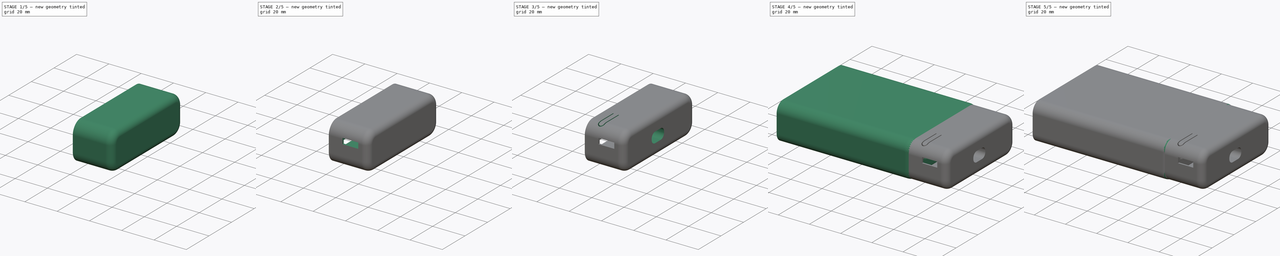
[diagram: build sequence overview — one tinted view per stage of 5, left to right]
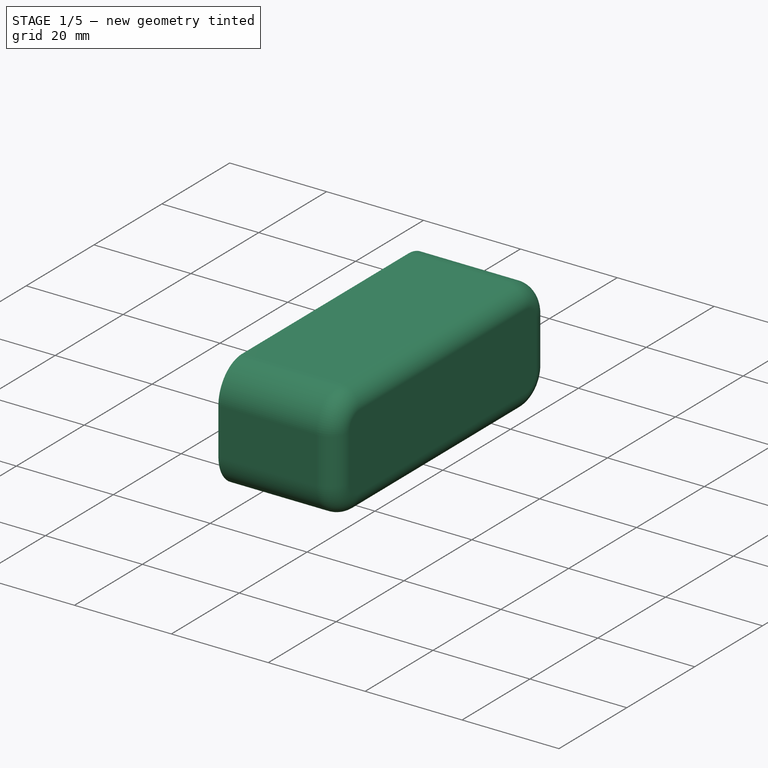
[diagram: stage 1 of 5 — iso view after this stage's code; geometry added in this stage tinted green]
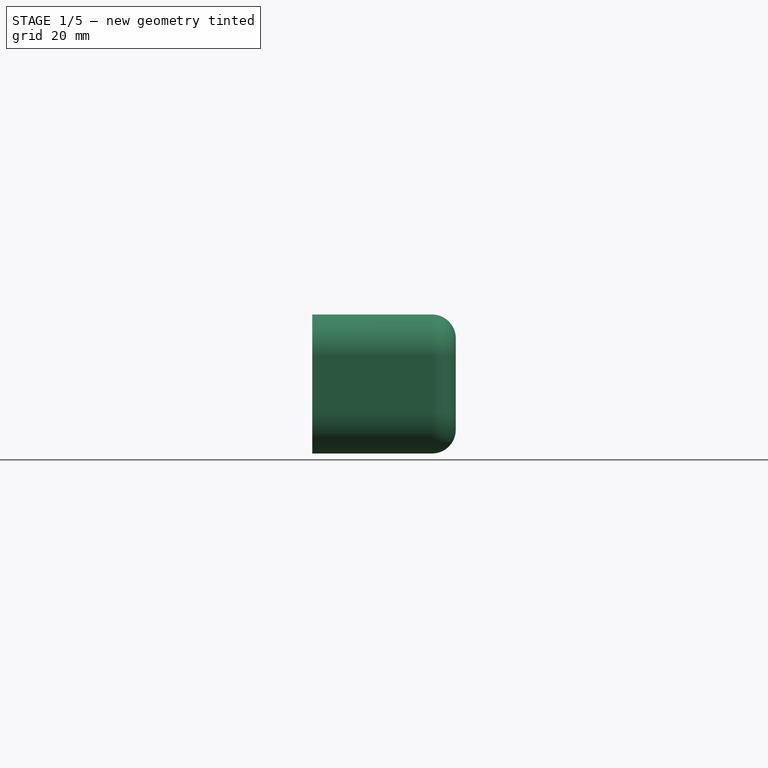
[diagram: stage 1 of 5 — front view after this stage's code; geometry added in this stage tinted green]
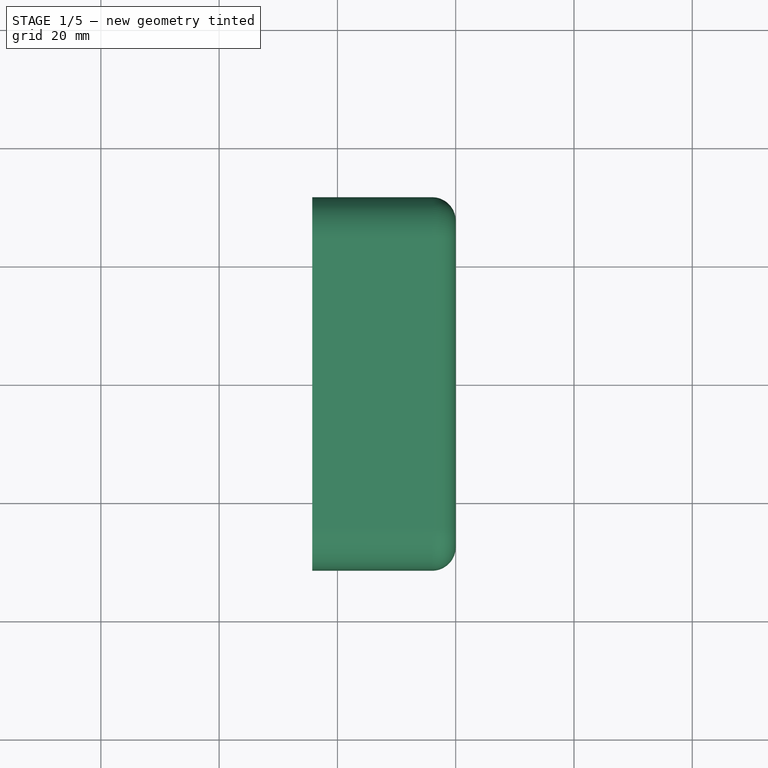
[diagram: stage 1 of 5 — top view after this stage's code; geometry added in this stage tinted green]
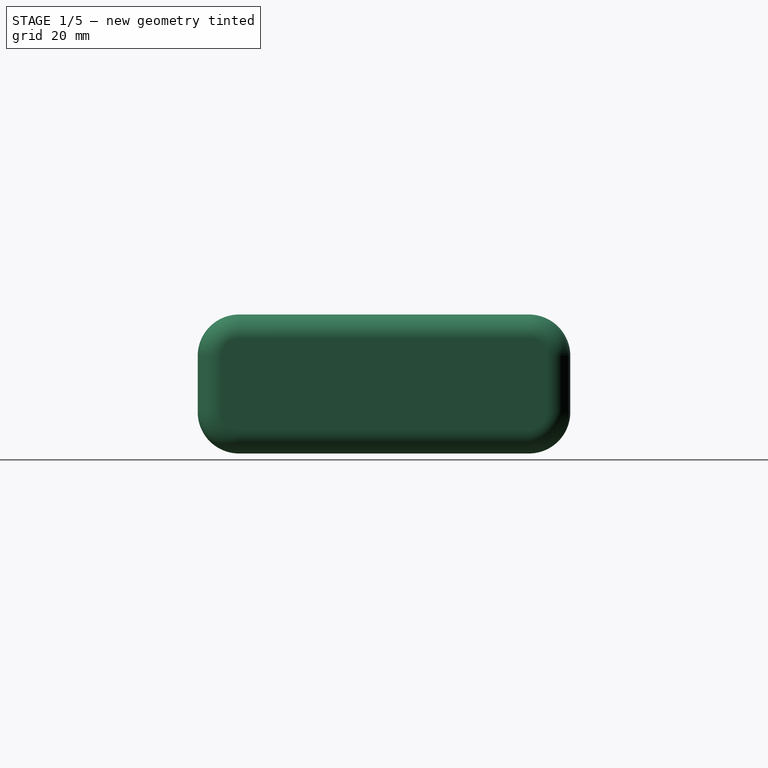
[diagram: stage 1 of 5 — right view after this stage's code; geometry added in this stage tinted green]
FCSTD DOCUMENT  (FreeCAD 1.1R40267 (Git))
Label: xiao_intenso_xs10000
License: All rights reserved
LicenseURL: https://en.wikipedia.org/wiki/All_rights_reserved
objects: Part::Feature×37, Sketcher::SketchObject×12, App::Point×11, App::Part×8, PartDesign::Pocket×6, PartDesign::Pad×4, PartDesign::Fillet×4, PartDesign::Body×3, Part::Cut×1
note: 107 computed .brp shape members not serialized (recipe doc carries the construction recipe); baked Part::Feature solids carry a one-line shape summary decoded from their .brp

FEATURE [PartDesign::Body] Body  label="powerbank_intenso_xs10000_10Ah"
  AllowCompound = false
  Group = -> [Sketch,Sketch001,Pad,Fillet]
  Origin = -> Origin016
  Tip = -> Fillet
FEATURE [Sketcher::SketchObject] Sketch002
  ArcFitTolerance = 1e-06
  AttachmentSupport = -> [XZ_Plane009]
  ExternalTypes = [0]
  FullyConstrained = false
  MakeInternals = false
  MapMode = 5
  Placement = pos=(0,0,0) rot=(1,0,0;1.5708rad)
  sketch-geometry (6):
    g0: LineSegment StartX=-4.25 StartY=11.75 StartZ=0 EndX=0.5 EndY=11.75 EndZ=0
    g1: LineSegment StartX=0.5 StartY=11.75 StartZ=0 EndX=20 EndY=11.75 EndZ=0
    g2: LineSegment StartX=-4.25 StartY=-11.75 StartZ=0 EndX=0.5 EndY=-11.75 EndZ=0
    g3: LineSegment StartX=0.5 StartY=-11.75 StartZ=0 EndX=20 EndY=-11.75 EndZ=0
    g4: LineSegment StartX=20 StartY=11.75 StartZ=0 EndX=20 EndY=-11.75 EndZ=0
    g5: LineSegment StartX=-4.25 StartY=-11.75 StartZ=0 EndX=-4.25 EndY=11.75 EndZ=0
  constraints (15):
    c: Distance(g0) = 4.75
    c: Horizontal(g0)
    c: Distance(g1) = 19.5
    c: Horizontal(g1)
    c: Coincident(g1,g0)
    c: Horizontal(g2)
    c: Horizontal(g3)
    c: Coincident(g3,g2)
    c: Coincident(g4,g1)
    c: Coincident(g4,g3)
    c: Vertical(g4)
    c: Coincident(g5,g2)
    c: Coincident(g5,g0)
    c: DistanceX(g0) = 0.5
    c: Vertical(g5)
FEATURE [App::Point] Origin019
  Role = Origin
FEATURE [PartDesign::Pad] Pad001
  Direction = (0,-1,2e-16)
  Length = 63
  Length2 = 10
  Midplane = true
  Placement = pos=(0,0,0) rot=(1,0,0;1.5708rad)
  Profile = -> Sketch002
  ReferenceAxis = -> Sketch002 [N_Axis]
  Refine = true
  Suppressed = false
  Type = 0
FEATURE [PartDesign::Fillet] Fillet001
  Base = -> Pad001 [Edge11,Edge12,Edge7,Edge5]
  BaseFeature = -> Pad001
  Placement = pos=(0,0,0) rot=(1,0,0;1.5708rad)
  Radius = 7
  Refine = true
  SupportTransform = false
  Suppressed = false
  UseAllEdges = false
FEATURE [PartDesign::Body] Body002  label="cut_powerbank_intenso_xs10000"
  AllowCompound = false
  Group = -> [Sketch003,Sketch004,Pad002,Fillet002]
  Origin = -> Origin020
  Placement = pos=(0.5,0,0) rot=(0,0,1;0rad)
  Tip = -> Fillet002
FEATURE [Sketcher::SketchObject] Sketch005
  ArcFitTolerance = 1e-06
  AttachmentOffset = pos=(0,0,-5) rot=(0,0,1;0rad)
  AttachmentSupport = -> [YZ_Plane009]
  ExternalTypes = [0]
  FullyConstrained = false
  MakeInternals = false
  MapMode = 5
  Placement = pos=(-5,0,0) rot=(0.57735,0.57735,0.57735;2.0944rad)
  sketch-geometry (16):
    g0: LineSegment StartX=-30.5 StartY=4 StartZ=0 EndX=-30.5 EndY=-6 EndZ=0
    g1: LineSegment StartX=-30.5 StartY=-6 StartZ=0 EndX=-11.004 EndY=-6 EndZ=0
    g2: LineSegment StartX=27.5 StartY=-6 StartZ=0 EndX=27.5 EndY=4 EndZ=0
    g3: LineSegment StartX=27.5 StartY=4 StartZ=0 EndX=6.25 EndY=4 EndZ=0
    g4: GeomPoint [constr] X=-7 Y=4 Z=0
    g5: GeomPoint [constr] X=-7 Y=-5 Z=0
    g6: GeomPoint [constr] X=6 Y=4 Z=0
    g7: GeomPoint [constr] X=6 Y=-5 Z=0
    g8: LineSegment StartX=6.25 StartY=4 StartZ=0 EndX=6.25 EndY=-6 EndZ=0
    g9: LineSegment StartX=-7.75 StartY=4 StartZ=0 EndX=-7.75 EndY=-6 EndZ=0
    g10: LineSegment StartX=-7.75 StartY=4 StartZ=0 EndX=-30.5 EndY=4 EndZ=0
    g11: LineSegment StartX=8.50015 StartY=-6 StartZ=0 EndX=27.5 EndY=-6 EndZ=0
    g12: LineSegment StartX=-7.75 StartY=-6 StartZ=0 EndX=6.25 EndY=-6 EndZ=0
    g13: LineSegment StartX=-8.25 StartY=-9.25 StartZ=0 EndX=7 EndY=-9.25 EndZ=0
    g14: LineSegment StartX=7 StartY=-9.25 StartZ=0 EndX=8.50015 EndY=-6 EndZ=0
    g15: LineSegment StartX=-8.25 StartY=-9.25 StartZ=0 EndX=-11.004 EndY=-6 EndZ=0
  constraints (23):
    c: Coincident(g0,g1)
    c: Coincident(g11,g2)
    c: Coincident(g2,g3)
    c: Coincident(g10,g0)
    c: Vertical(g0)
    c: Vertical(g2)
    c: Distance(g0,g2) = 58
    c: Distance(g4,g6) = 13
    c: Distance(g5,g4) = 9
    c: Horizontal(g3)
    c: Horizontal(g10)
    c: Vertical(g9)
    c: Coincident(g10,g9)
    c: Vertical(g8)
    c: Coincident(g3,g8)
    c: Horizontal(g12)
    c: Horizontal(g13)
    c: Coincident(g14,g13)
    c: Horizontal(g11)
    c: Coincident(g14,g11)
    c: Coincident(g15,g13)
    c: Horizontal(g1)
    c: Coincident(g15,g1)
FEATURE [Sketcher::SketchObject] Sketch006
  ArcFitTolerance = 1e-06
  AttachmentOffset = pos=(0,0,2) rot=(0,0,1;0rad)
  AttachmentSupport = -> [XY_Plane009]
  ExternalTypes = [0]
  FullyConstrained = false
  MakeInternals = false
  MapMode = 5
  Placement = pos=(0,0,2) rot=(0,0,1;0rad)
  sketch-geometry (4):
    g0: LineSegment StartX=14 StartY=-22.8728 StartZ=0 EndX=4.25 EndY=-22.8728 EndZ=0
    g1: LineSegment StartX=4.25 StartY=-22.8728 StartZ=0 EndX=4.25 EndY=-32 EndZ=0
    g2: LineSegment StartX=4.25 StartY=-32 StartZ=0 EndX=14 EndY=-32 EndZ=0
    g3: LineSegment StartX=14 StartY=-32 StartZ=0 EndX=14 EndY=-22.8728 EndZ=0
  constraints (8):
    c: Coincident(g0,g1)
    c: Coincident(g1,g2)
    c: Coincident(g2,g3)
    c: Coincident(g3,g0)
    c: Horizontal(g0)
    c: Horizontal(g2)
    c: Vertical(g1)
    c: Vertical(g3)
FEATURE [Sketcher::SketchObject] Sketch007
  ArcFitTolerance = 1e-06
  AttachmentSupport = -> [YZ_Plane009]
  ExternalTypes = [0]
  FullyConstrained = false
  MakeInternals = false
  MapMode = 5
  Placement = pos=(0,0,0) rot=(0.57735,0.57735,0.57735;2.0944rad)
  sketch-geometry (4):
    g0: LineSegment StartX=-7.5 StartY=2 StartZ=0 EndX=-28.5 EndY=2 EndZ=0
    g1: LineSegment StartX=-28.5 StartY=2 StartZ=0 EndX=-28.5 EndY=-0.5 EndZ=0
    g2: LineSegment StartX=-28.5 StartY=-0.5 StartZ=0 EndX=-7.5 EndY=-0.5 EndZ=0
    g3: LineSegment StartX=-7.5 StartY=-0.5 StartZ=0 EndX=-7.5 EndY=2 EndZ=0
  constraints (8):
    c: Coincident(g0,g1)
    c: Coincident(g1,g2)
    c: Coincident(g2,g3)
    c: Coincident(g3,g0)
    c: Horizontal(g0)
    c: Horizontal(g2)
    c: Vertical(g1)
    c: Vertical(g3)
FEATURE [Sketcher::SketchObject] Sketch008
  ArcFitTolerance = 1e-06
  AttachmentSupport = -> [YZ_Plane009]
  ExternalTypes = [0]
  FullyConstrained = false
  MakeInternals = false
  MapMode = 5
  Placement = pos=(0,0,0) rot=(0.57735,0.57735,0.57735;2.0944rad)
  sketch-geometry (12):
    g0: LineSegment StartX=-7 StartY=-0.250037 StartZ=0 EndX=-7 EndY=-0.750037 EndZ=0
    g1: LineSegment StartX=-4 StartY=-3.75004 StartZ=0 EndX=1 EndY=-3.75004 EndZ=0
    g2: LineSegment StartX=4 StartY=-0.750037 StartZ=0 EndX=4 EndY=-0.250037 EndZ=0
    g3: LineSegment StartX=1 StartY=2.74996 StartZ=0 EndX=-4 EndY=2.74996 EndZ=0
    g4: ArcOfCircle CenterX=-4 CenterY=-0.250037 CenterZ=0 NormalX=0 NormalY=0 NormalZ=1 AngleXU=0 Radius=3 StartAngle=1.5708 EndAngle=3.14159
    g5: GeomPoint [constr] X=-7 Y=2.74996 Z=0
    g6: ArcOfCircle CenterX=-4 CenterY=-0.750037 CenterZ=0 NormalX=0 NormalY=0 NormalZ=1 AngleXU=0 Radius=3 StartAngle=3.14159 EndAngle=4.71239
    g7: GeomPoint [constr] X=-7 Y=-3.75004 Z=0
    g8: ArcOfCircle CenterX=1 CenterY=-0.250037 CenterZ=0 NormalX=0 NormalY=0 NormalZ=1 AngleXU=0 Radius=3 StartAngle=-9e-16 EndAngle=1.5708
    g9: GeomPoint [constr] X=4 Y=2.74996 Z=0
    g10: ArcOfCircle CenterX=1 CenterY=-0.750037 CenterZ=0 NormalX=0 NormalY=0 NormalZ=1 AngleXU=0 Radius=3 StartAngle=4.71239 EndAngle=6.28319
    g11: GeomPoint [constr] X=4 Y=-3.75004 Z=0
  constraints (27):
    c: Vertical(g0)
    c: Vertical(g2)
    c: Horizontal(g1)
    c: Horizontal(g3)
    c: Distance(g5,g9) = 11
    c: Distance(g7,g5) = 6.5
    c: PointOnObject(g5,g3)
    c: PointOnObject(g5,g0)
    c: Tangent(g3,g4) = -1.5708
    c: Tangent(g0,g4) = -1.5708
    c: PointOnObject(g7,g0)
    c: PointOnObject(g7,g1)
    c: Tangent(g0,g6) = -1.5708
    c: Tangent(g1,g6) = -1.5708
    c: PointOnObject(g9,g3)
    c: PointOnObject(g9,g2)
    c: Tangent(g3,g8) = -1.5708
    c: Tangent(g2,g8) = -1.5708
    c: PointOnObject(g11,g2)
    c: PointOnObject(g11,g1)
    c: Tangent(g2,g10) = -1.5708
    c: Tangent(g1,g10) = -1.5708
    c: Equal(g10,g8)
    c: Equal(g8,g4)
    c: Equal(g4,g6)
    c: Radius(g8) = 3
    c: DistanceX(g8) = 1
FEATURE [Sketcher::SketchObject] Sketch009
  ArcFitTolerance = 1e-06
  AttachmentSupport = -> [XY_Plane009]
  ExternalTypes = [0]
  FullyConstrained = false
  MakeInternals = false
  MapMode = 5
  sketch-geometry (4):
    g0: LineSegment StartX=6 StartY=-25 StartZ=0 EndX=6 EndY=-14 EndZ=0
    g1: LineSegment StartX=6 StartY=-14 StartZ=0 EndX=0 EndY=-14 EndZ=0
    g2: LineSegment StartX=0 StartY=-14 StartZ=0 EndX=0 EndY=-25 EndZ=0
    g3: LineSegment StartX=0 StartY=-25 StartZ=0 EndX=6 EndY=-25 EndZ=0
  constraints (8):
    c: Coincident(g0,g1)
    c: Coincident(g1,g2)
    c: Coincident(g2,g3)
    c: Coincident(g3,g0)
    c: Vertical(g0)
    c: Vertical(g2)
    c: Horizontal(g1)
    c: Horizontal(g3)
FEATURE [Sketcher::SketchObject] Sketch010
  ArcFitTolerance = 1e-06
  AttachmentSupport = -> [XY_Plane009]
  ExternalTypes = [0]
  FullyConstrained = false
  MakeInternals = false
  MapMode = 5
  sketch-geometry (8):
    g0: LineSegment StartX=1.5 StartY=-14 StartZ=0 EndX=1.5 EndY=-26.7456 EndZ=0
    g1: LineSegment StartX=4.25 StartY=-26.7453 StartZ=0 EndX=4.25 EndY=-14 EndZ=0
    g2: LineSegment StartX=4.75 StartY=-26.7456 StartZ=0 EndX=4.75 EndY=-14 EndZ=0
    g3: LineSegment StartX=4.75 StartY=-14 StartZ=0 EndX=4.25 EndY=-14 EndZ=0
    g4: LineSegment StartX=1 StartY=-14 StartZ=0 EndX=1 EndY=-26.7456 EndZ=0
    g5: LineSegment StartX=1.5 StartY=-14 StartZ=0 EndX=1 EndY=-14 EndZ=0
    g6: ArcOfCircle CenterX=2.875 CenterY=-26.7502 CenterZ=0 NormalX=0 NormalY=0 NormalZ=1 AngleXU=0 Radius=1.37501 StartAngle=3.13824 EndAngle=6.28676
    g7: ArcOfCircle CenterX=2.875 CenterY=-26.7456 CenterZ=0 NormalX=0 NormalY=0 NormalZ=1 AngleXU=0 Radius=1.875 StartAngle=3.14159 EndAngle=6.28319
  constraints (16):
    c: Vertical(g0)
    c: Vertical(g1)
    c: Coincident(g2,g3)
    c: Coincident(g5,g4)
    c: Vertical(g2)
    c: Vertical(g4)
    c: Horizontal(g3)
    c: Horizontal(g5)
    c: Coincident(g3,g1)
    c: Coincident(g5,g0)
    c: Coincident(g6,g0)
    c: Coincident(g6,g1)
    c: Coincident(g7,g4)
    c: Coincident(g7,g2)
    c: DistanceX(g3,g3) = 0.5
    c: DistanceX(g5,g5) = 0.5
FEATURE [Sketcher::SketchObject] Sketch011
  ArcFitTolerance = 1e-06
  AttachmentOffset = pos=(0,0,4) rot=(0,0,1;0rad)
  AttachmentSupport = -> [XY_Plane009]
  ExternalTypes = [0]
  FullyConstrained = false
  MakeInternals = false
  MapMode = 5
  Placement = pos=(0,0,4) rot=(0,0,1;0rad)
  sketch-geometry (1):
    g0: Circle CenterX=2.875 CenterY=-26.75 CenterZ=0 NormalX=0 NormalY=0 NormalZ=1 AngleXU=0 Radius=1.37
  constraints (1):
    c: Radius(g0) = 1.37
FEATURE [PartDesign::Fillet] Fillet003
  Base = -> Fillet001 [Face10]
  BaseFeature = -> Fillet001
  Placement = pos=(0,0,0) rot=(1,0,0;1.5708rad)
  Radius = 4
  Refine = true
  SupportTransform = false
  Suppressed = false
  UseAllEdges = false
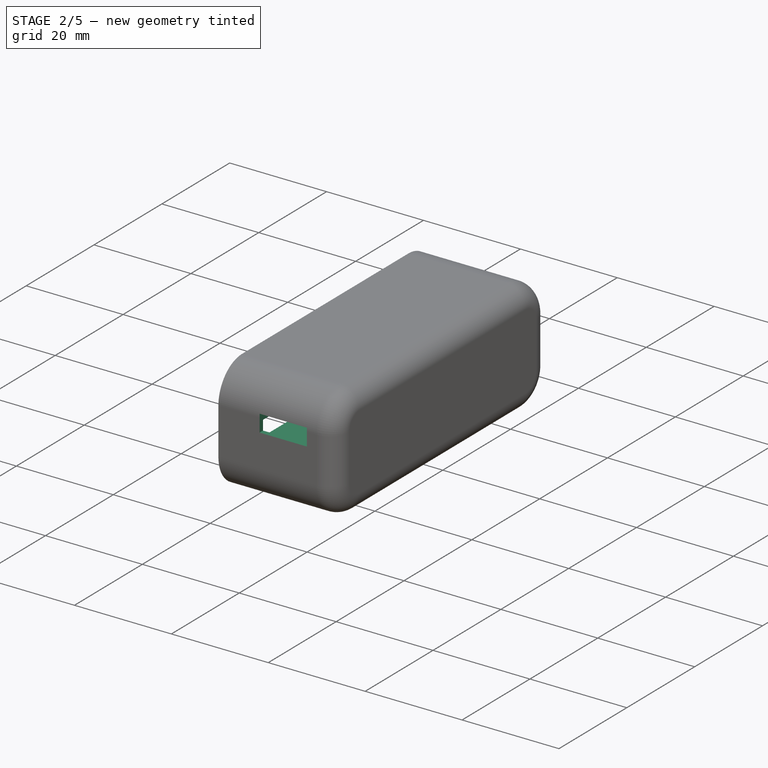
[diagram: stage 2 of 5 — iso view after this stage's code; geometry added in this stage tinted green]
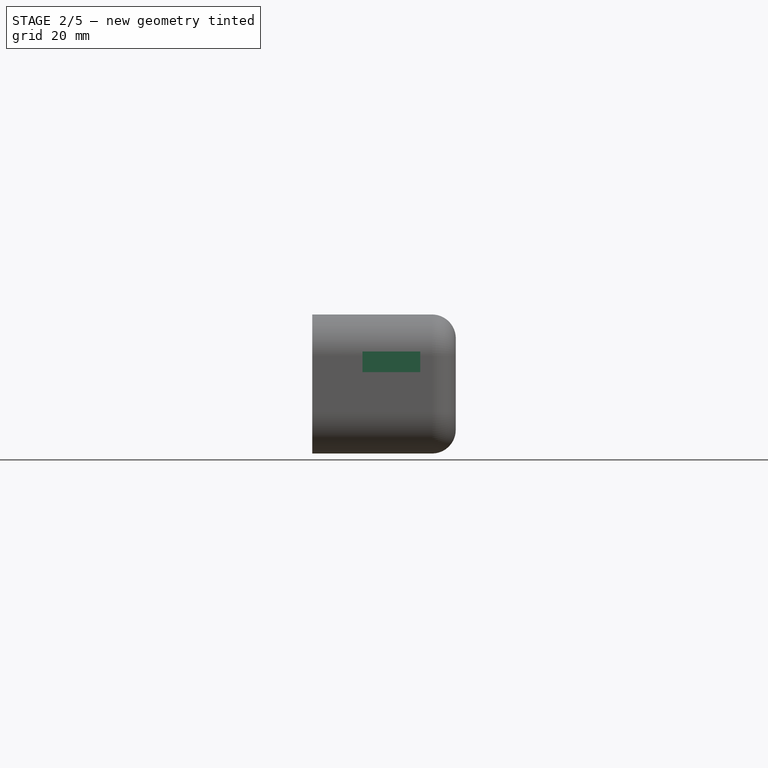
[diagram: stage 2 of 5 — front view after this stage's code; geometry added in this stage tinted green]
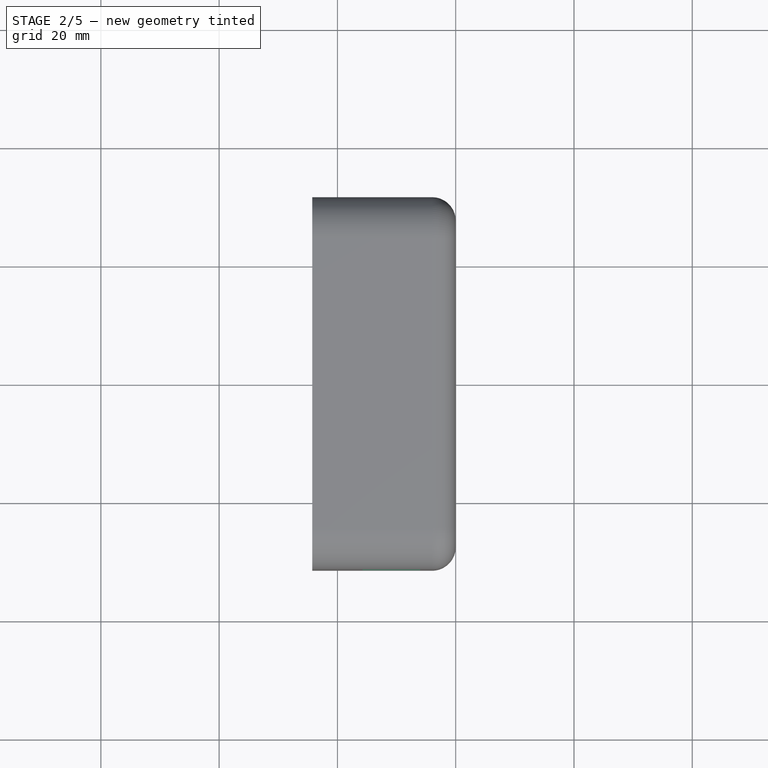
[diagram: stage 2 of 5 — top view after this stage's code; geometry added in this stage tinted green]
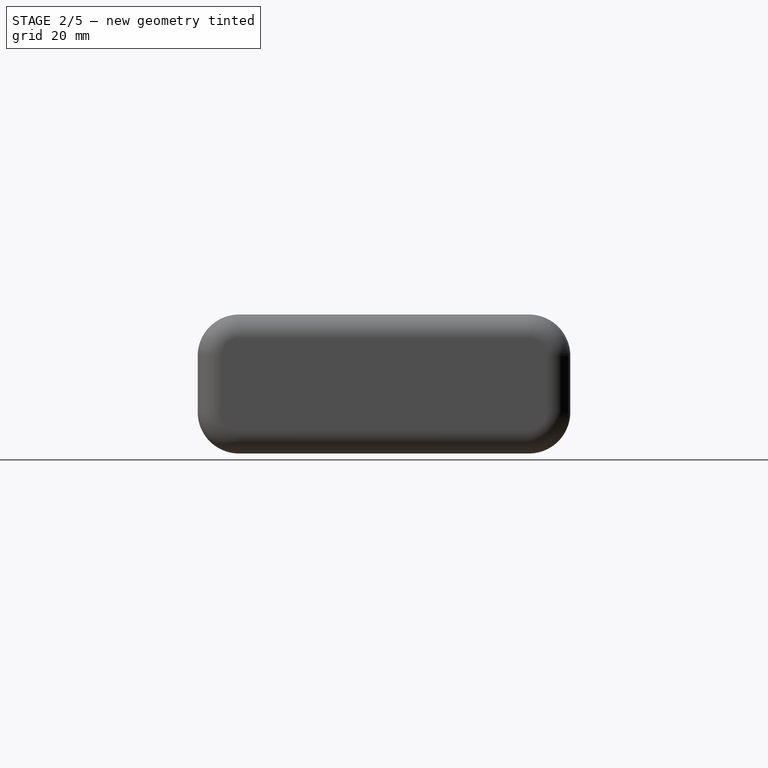
[diagram: stage 2 of 5 — right view after this stage's code; geometry added in this stage tinted green]
FEATURE [PartDesign::Pocket] Pocket
  BaseFeature = -> Fillet003
  Direction = (-1,0,0)
  Length = 22
  Length2 = 5
  Placement = pos=(0,0,0) rot=(1,0,0;1.5708rad)
  Profile = -> Sketch005
  ReferenceAxis = -> Sketch005 [N_Axis]
  Refine = true
  Reversed = true
  Suppressed = false
  Type = 0
FEATURE [PartDesign::Pocket] Pocket001
  BaseFeature = -> Pocket
  Direction = (0,0,-1)
  Length = 3.5
  Length2 = 5
  Placement = pos=(0,0,0) rot=(1,0,0;1.5708rad)
  Profile = -> Sketch006
  ReferenceAxis = -> Sketch006 [N_Axis]
  Refine = true
  Reversed = true
  Suppressed = false
  Type = 0
FEATURE [PartDesign::Pocket] Pocket002
  BaseFeature = -> Pocket001
  Direction = (-1,0,0)
  Length = 18
  Length2 = 5
  Placement = pos=(0,0,0) rot=(1,0,0;1.5708rad)
  Profile = -> Sketch007
  ReferenceAxis = -> Sketch007 [N_Axis]
  Refine = true
  Reversed = true
  Suppressed = false
  Type = 0
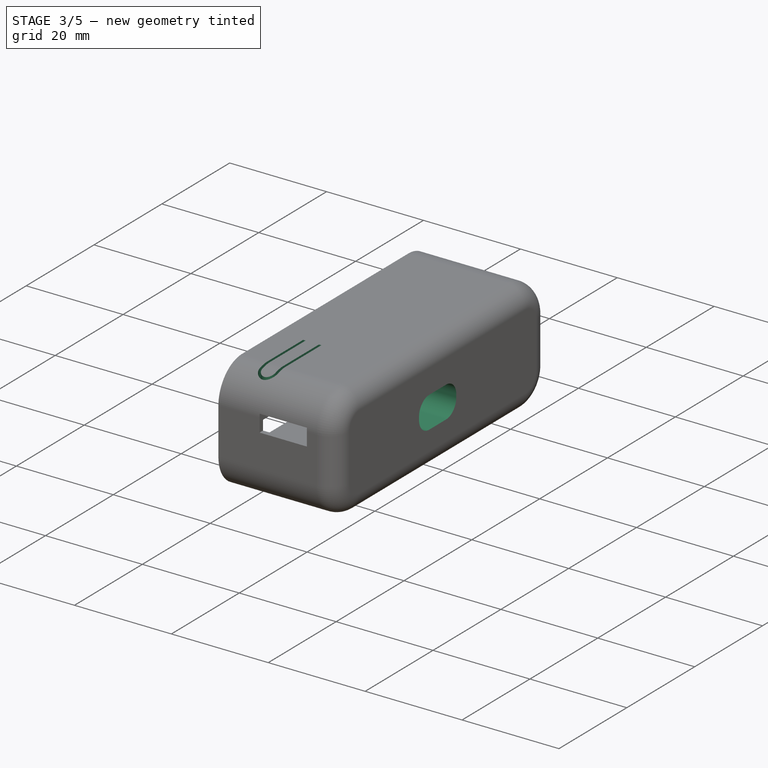
[diagram: stage 3 of 5 — iso view after this stage's code; geometry added in this stage tinted green]
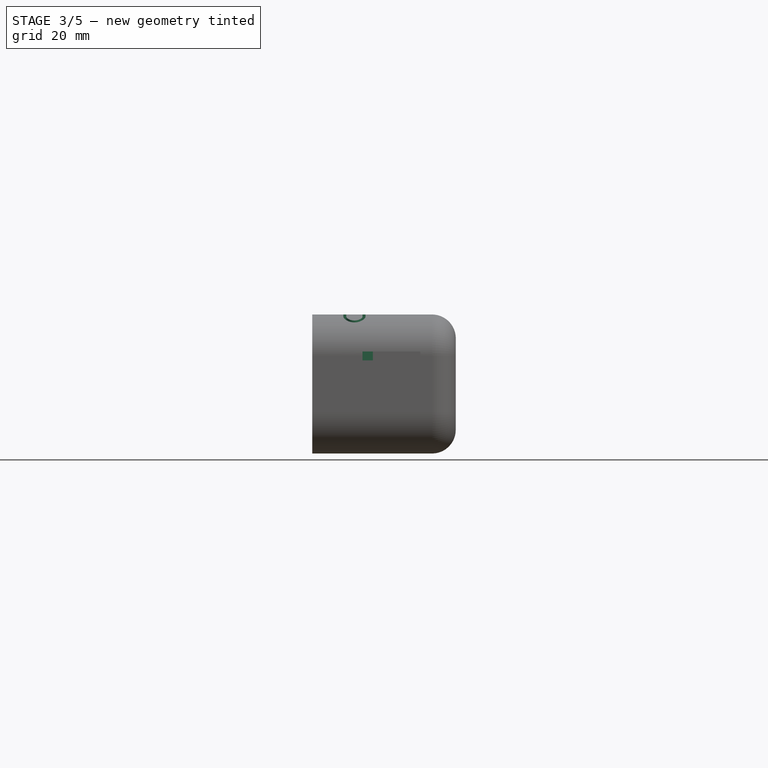
[diagram: stage 3 of 5 — front view after this stage's code; geometry added in this stage tinted green]
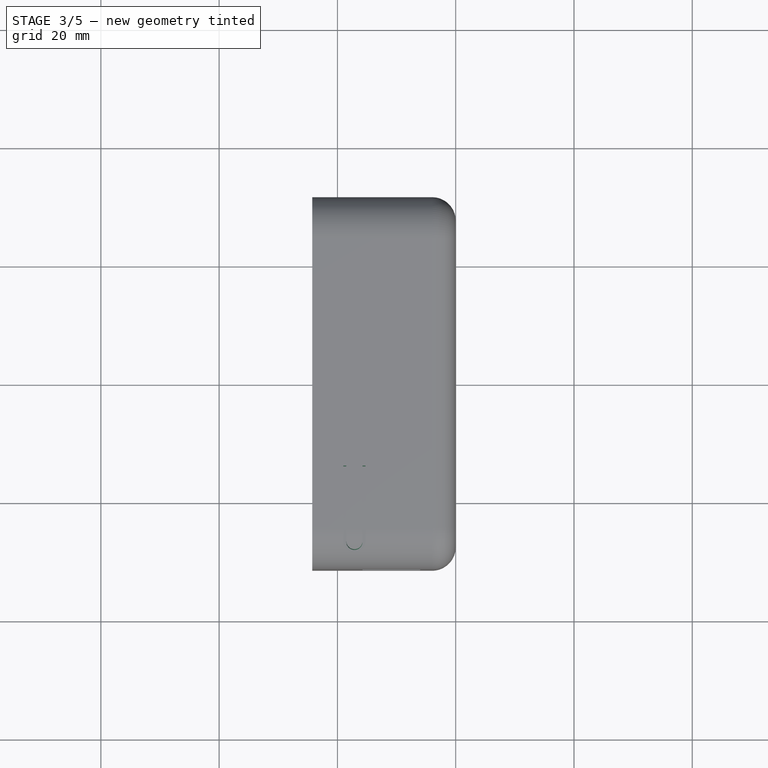
[diagram: stage 3 of 5 — top view after this stage's code; geometry added in this stage tinted green]
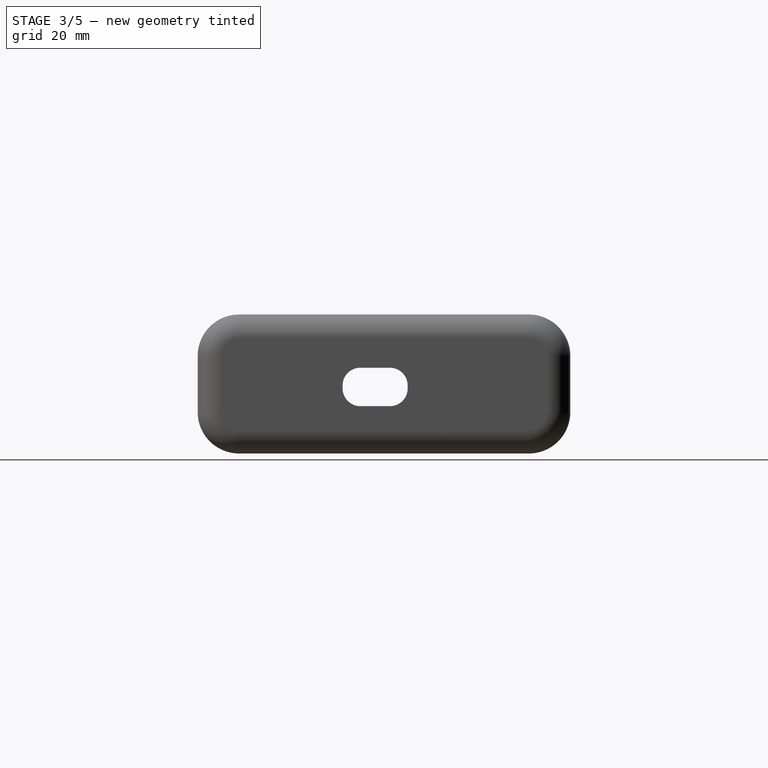
[diagram: stage 3 of 5 — right view after this stage's code; geometry added in this stage tinted green]
FEATURE [PartDesign::Pocket] Pocket003
  BaseFeature = -> Pocket002
  Direction = (-1,0,0)
  Length = 50
  Length2 = 5
  Midplane = true
  Placement = pos=(0,0,0) rot=(1,0,0;1.5708rad)
  Profile = -> Sketch008
  ReferenceAxis = -> Sketch008 [N_Axis]
  Refine = true
  Suppressed = false
  Type = 0
FEATURE [PartDesign::Pocket] Pocket004
  BaseFeature = -> Pocket003
  Direction = (0,0,-1)
  Length = 10
  Length2 = 5
  Placement = pos=(0,0,0) rot=(1,0,0;1.5708rad)
  Profile = -> Sketch009
  ReferenceAxis = -> Sketch009 [N_Axis]
  Refine = true
  Reversed = true
  Suppressed = false
  Type = 0
FEATURE [PartDesign::Pocket] Pocket005
  BaseFeature = -> Pocket004
  Direction = (0,0,-1)
  Length = 50
  Length2 = 5
  Placement = pos=(0,0,0) rot=(1,0,0;1.5708rad)
  Profile = -> Sketch010
  ReferenceAxis = -> Sketch010 [N_Axis]
  Refine = true
  Reversed = true
  Suppressed = false
  Type = 0
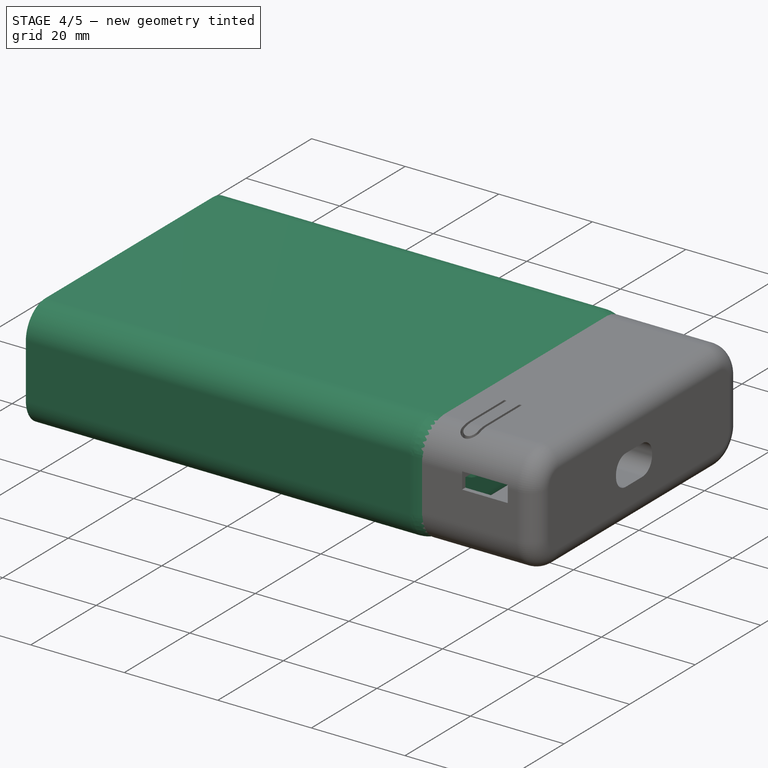
[diagram: stage 4 of 5 — iso view after this stage's code; geometry added in this stage tinted green]
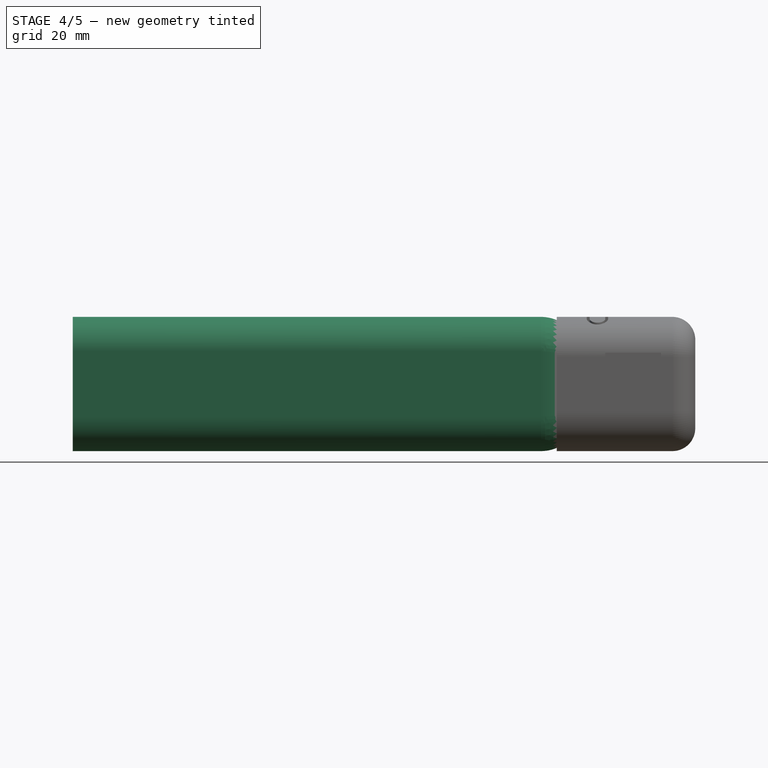
[diagram: stage 4 of 5 — front view after this stage's code; geometry added in this stage tinted green]
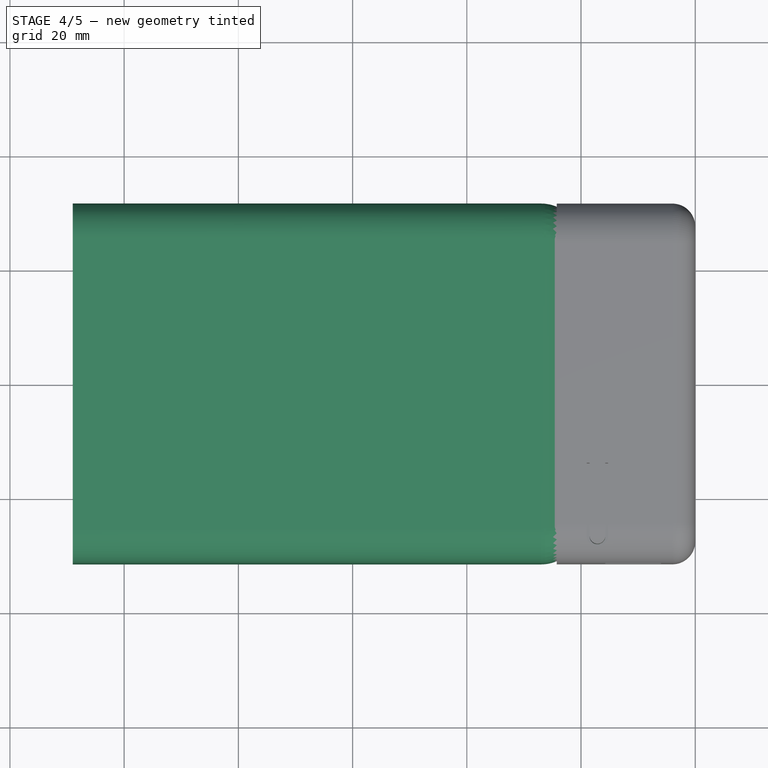
[diagram: stage 4 of 5 — top view after this stage's code; geometry added in this stage tinted green]
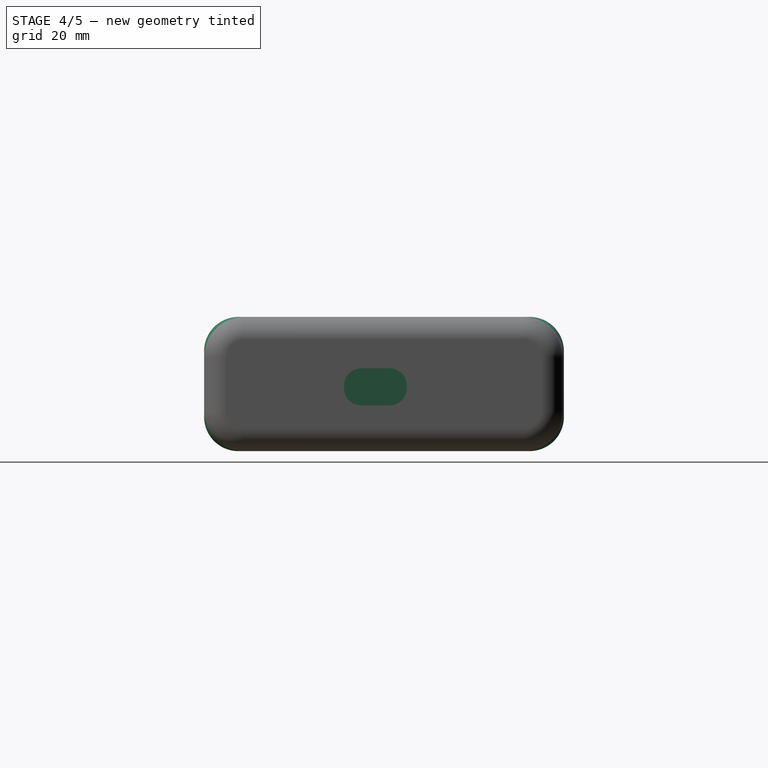
[diagram: stage 4 of 5 — right view after this stage's code; geometry added in this stage tinted green]
FEATURE [App::Point] Origin021
  Role = Origin
FEATURE [Sketcher::SketchObject] Sketch003
  ArcFitTolerance = 1e-06
  AttachmentSupport = -> [XY_Plane010]
  ExternalTypes = [0]
  FullyConstrained = true
  MakeInternals = false
  MapMode = 5
FEATURE [Sketcher::SketchObject] Sketch004
  ArcFitTolerance = 1e-06
  AttachmentSupport = -> [YZ_Plane010]
  ExternalTypes = [0]
  FullyConstrained = true
  MakeInternals = false
  MapMode = 5
  Placement = pos=(0,0,0) rot=(0.57735,0.57735,0.57735;2.0944rad)
  sketch-geometry (12):
    g0: LineSegment StartX=-31.5 StartY=5.75 StartZ=0 EndX=-31.5 EndY=-5.75 EndZ=0
    g1: LineSegment StartX=-25.5 StartY=-11.75 StartZ=0 EndX=25.5 EndY=-11.75 EndZ=0
    g2: LineSegment StartX=31.5 StartY=-5.75 StartZ=0 EndX=31.5 EndY=5.75 EndZ=0
    g3: LineSegment StartX=25.5 StartY=11.75 StartZ=0 EndX=-25.5 EndY=11.75 EndZ=0
    g4: ArcOfCircle CenterX=25.5 CenterY=5.75 CenterZ=0 NormalX=0 NormalY=0 NormalZ=1 AngleXU=0 Radius=6 StartAngle=0 EndAngle=1.5708
    g5: GeomPoint [constr] X=31.5 Y=11.75 Z=0
    g6: ArcOfCircle CenterX=25.5 CenterY=-5.75 CenterZ=0 NormalX=0 NormalY=0 NormalZ=1 AngleXU=0 Radius=6 StartAngle=4.71239 EndAngle=6.28319
    g7: GeomPoint [constr] X=31.5 Y=-11.75 Z=0
    g8: ArcOfCircle CenterX=-25.5 CenterY=-5.75 CenterZ=0 NormalX=0 NormalY=0 NormalZ=1 AngleXU=0 Radius=6 StartAngle=3.14159 EndAngle=4.71239
    g9: GeomPoint [constr] X=-31.5 Y=-11.75 Z=0
    g10: ArcOfCircle CenterX=-25.5 CenterY=5.75 CenterZ=0 NormalX=0 NormalY=0 NormalZ=1 AngleXU=0 Radius=6 StartAngle=1.5708 EndAngle=3.14159
    g11: GeomPoint [constr] X=-31.5 Y=11.75 Z=0
  constraints (26):
    c: Vertical(g0)
    c: Horizontal(g1)
    c: Distance(g11,g5) = 63
    c: Distance(g9,g11) = 23.5
    c: Symmetric(g5,g11,g-2)
    c: Symmetric(g5,g7,g-1)
    c: PointOnObject(g5,g3)
    c: PointOnObject(g5,g2)
    c: Tangent(g3,g4) = -1.5708
    c: Tangent(g2,g4) = -1.5708
    c: PointOnObject(g7,g2)
    c: PointOnObject(g7,g1)
    c: Tangent(g2,g6) = -1.5708
    c: Tangent(g1,g6) = -1.5708
    c: PointOnObject(g9,g0)
    c: PointOnObject(g9,g1)
    c: Tangent(g0,g8) = -1.5708
    c: Tangent(g1,g8) = -1.5708
    c: PointOnObject(g11,g3)
    c: PointOnObject(g11,g0)
    c: Tangent(g3,g10) = -1.5708
    c: Tangent(g0,g10) = -1.5708
    c: Equal(g10,g4)
    c: Equal(g4,g6)
    c: Equal(g6,g8)
    c: Radius(g4) = 6
FEATURE [PartDesign::Pad] Pad002
  Direction = (1,0,0)
  Length = 89
  Length2 = 10
  Placement = pos=(0,0,0) rot=(1,1,1;2.0944rad)
  Profile = -> Sketch004
  ReferenceAxis = -> Sketch004 [N_Axis]
  Refine = true
  Reversed = true
  Suppressed = false
  Type = 0
FEATURE [PartDesign::Fillet] Fillet002
  Base = -> Pad002 [Edge21]
  BaseFeature = -> Pad002
  Placement = pos=(0,0,0) rot=(1,1,1;2.0944rad)
  Radius = 7
  Refine = true
  SupportTransform = false
  Suppressed = false
  UseAllEdges = false
FEATURE [PartDesign::Pad] Pad003
  BaseFeature = -> Pocket005
  Direction = (0,0,1)
  Length = 1.2
  Length2 = 10
  Placement = pos=(0,0,0) rot=(1,0,0;1.5708rad)
  Profile = -> Sketch011
  ReferenceAxis = -> Sketch011 [N_Axis]
  Refine = true
  Reversed = true
  Suppressed = false
  Type = 0
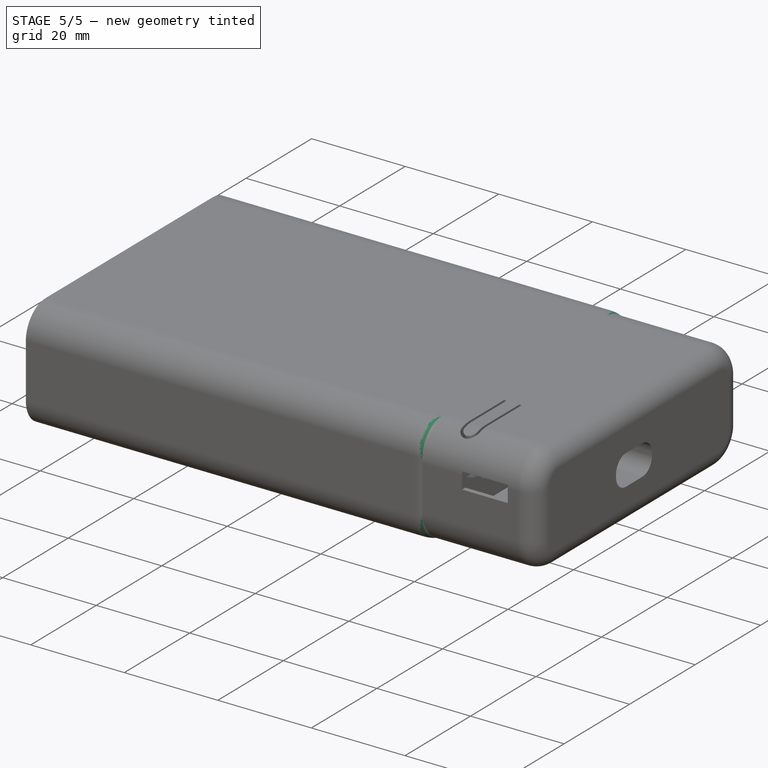
[diagram: stage 5 of 5 — iso view after this stage's code; geometry added in this stage tinted green]
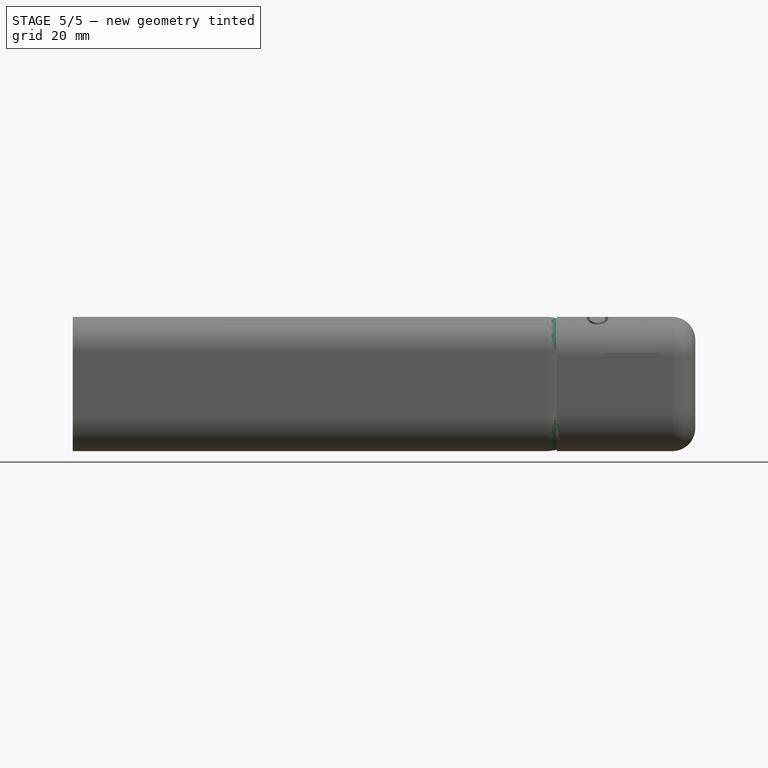
[diagram: stage 5 of 5 — front view after this stage's code; geometry added in this stage tinted green]
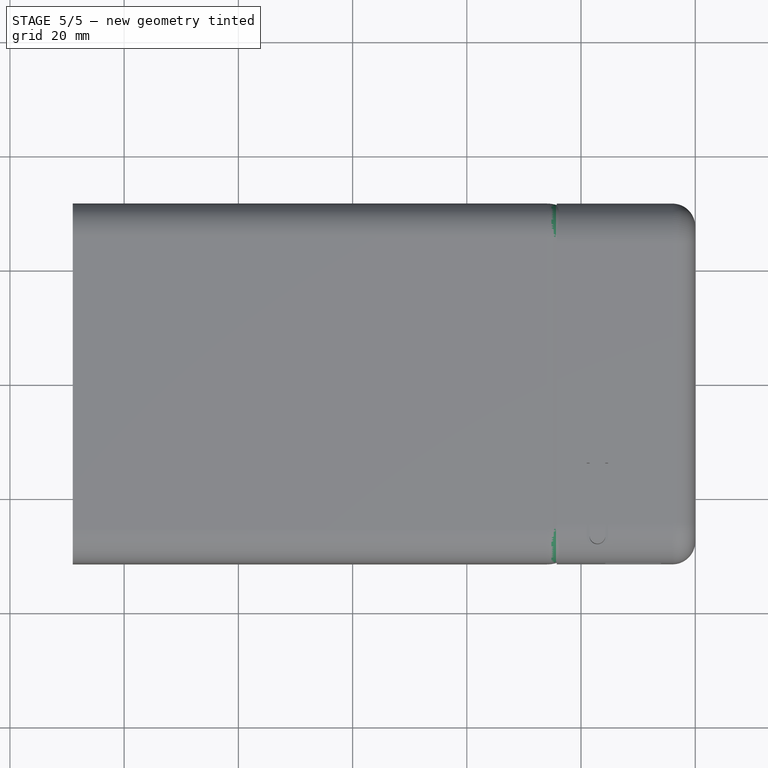
[diagram: stage 5 of 5 — top view after this stage's code; geometry added in this stage tinted green]
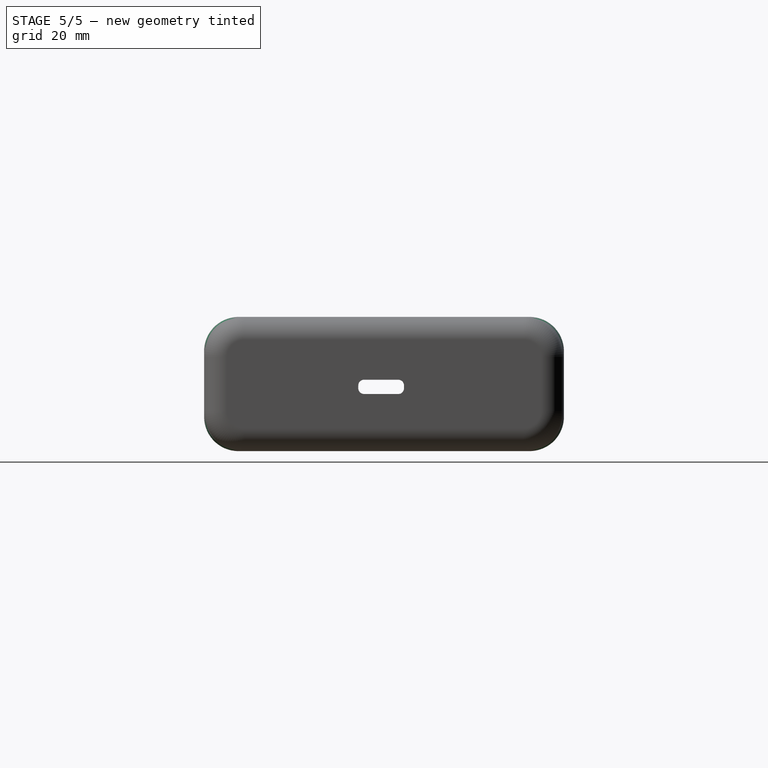
[diagram: stage 5 of 5 — right view after this stage's code; geometry added in this stage tinted green]
FEATURE [Part::Feature] Part__Feature  label="BOSS-EXTRUDE14_8_"
  Placement = pos=(-3.0192,1.09628,5.395) rot=(0,0,1;0rad)
  shape: bbox 0.6 x 1 x 0.3 mm, 6 faces (baked)
FEATURE [Part::Feature] Part__Feature001  label="BOSS-EXTRUDE7_4_"
  Placement = pos=(-3.0192,1.09628,5.395) rot=(0,0,1;0rad)
  shape: bbox 0.3 x 3.784 x 0.75 mm, 6 faces (baked)
FEATURE [Part::Feature] Part__Feature002  label="BOSS-EXTRUDE7_3_"
  Placement = pos=(-3.0192,1.09628,5.395) rot=(0,0,1;0rad)
  shape: bbox 0.3 x 3.784 x 0.75 mm, 6 faces (baked)
FEATURE [Part::Feature] Part__Feature003  label="BOSS-EXTRUDE14_4_"
  Placement = pos=(-3.0192,1.09628,5.395) rot=(0,0,1;0rad)
  shape: bbox 0.3 x 1 x 0.3 mm, 6 faces (baked)
FEATURE [Part::Feature] Part__Feature004  label="BOSS-EXTRUDE14_2_"
  Placement = pos=(-3.0192,1.09628,5.395) rot=(0,0,1;0rad)
  shape: bbox 0.6 x 1 x 0.3 mm, 6 faces (baked)
FEATURE [Part::Feature] Part__Feature005  label="BOSS-EXTRUDE14_11_"
  Placement = pos=(-3.0192,1.09628,5.395) rot=(0,0,1;0rad)
  shape: bbox 0.3 x 1 x 0.3 mm, 6 faces (baked)
FEATURE [Part::Feature] Part__Feature006  label="BOSS-EXTRUDE7_7_"
  Placement = pos=(-3.0192,1.09628,5.395) rot=(0,0,1;0rad)
  shape: bbox 0.3 x 3.784 x 0.75 mm, 6 faces (baked)
FEATURE [Part::Feature] Part__Feature007  label="BOSS-EXTRUDE14_9_"
  Placement = pos=(-3.0192,1.09628,5.395) rot=(0,0,1;0rad)
  shape: bbox 0.3 x 1 x 0.3 mm, 6 faces (baked)
FEATURE [Part::Feature] Part__Feature008  label="BOSS-EXTRUDE14_3_"
  Placement = pos=(-3.0192,1.09628,5.395) rot=(0,0,1;0rad)
  shape: bbox 0.3 x 1 x 0.3 mm, 6 faces (baked)
FEATURE [Part::Feature] Part__Feature009  label="BOSS-EXTRUDE14_7_"
  Placement = pos=(-3.0192,1.09628,5.395) rot=(0,0,1;0rad)
  shape: bbox 0.6 x 1 x 0.3 mm, 6 faces (baked)
FEATURE [Part::Feature] Part__Feature010  label="MIRROR2"
  Placement = pos=(-3.0192,1.09628,5.395) rot=(0,0,1;0rad)
  shape: bbox 6.7 x 4.6 x 0.7 mm, 26 faces (baked)
FEATURE [Part::Feature] Part__Feature011  label="BOSS-EXTRUDE14_5_"
  Placement = pos=(-3.0192,1.09628,5.395) rot=(0,0,1;0rad)
  shape: bbox 0.3 x 1 x 0.3 mm, 6 faces (baked)
FEATURE [Part::Feature] Part__Feature012  label="BOSS-EXTRUDE14_12_"
  Placement = pos=(-3.0192,1.09628,5.395) rot=(0,0,1;0rad)
  shape: bbox 0.3 x 1 x 0.3 mm, 6 faces (baked)
FEATURE [Part::Feature] Part__Feature013  label="BOSS-EXTRUDE7_8_"
  Placement = pos=(-3.0192,1.09628,5.395) rot=(0,0,1;0rad)
  shape: bbox 0.3 x 3.784 x 0.75 mm, 6 faces (baked)
FEATURE [Part::Feature] Part__Feature014  label="BOSS-EXTRUDE7_1_"
  Placement = pos=(-3.0192,1.09628,5.395) rot=(0,0,1;0rad)
  shape: bbox 0.3 x 3.784 x 0.75 mm, 6 faces (baked)
FEATURE [Part::Feature] Part__Feature015  label="BOSS-EXTRUDE14_10_"
  Placement = pos=(-3.0192,1.09628,5.395) rot=(0,0,1;0rad)
  shape: bbox 0.3 x 1 x 0.3 mm, 6 faces (baked)
FEATURE [Part::Feature] Part__Feature016  label="BOSS-EXTRUDE7_9_"
  Placement = pos=(-3.0192,1.09628,5.395) rot=(0,0,1;0rad)
  shape: bbox 0.3 x 3.784 x 0.75 mm, 6 faces (baked)
FEATURE [Part::Feature] Part__Feature017  label="BOSS-EXTRUDE14_6_"
  Placement = pos=(-3.0192,1.09628,5.395) rot=(0,0,1;0rad)
  shape: bbox 0.6 x 1 x 0.3 mm, 6 faces (baked)
FEATURE [Part::Feature] Part__Feature018  label="CHAMFER9"
  Placement = pos=(-3.0192,1.09628,5.395) rot=(0,0,1;0rad)
  shape: bbox 8.94 x 7.3 x 4.2 mm, 103 faces (baked)
FEATURE [Part::Feature] Part__Feature019  label="BOSS-EXTRUDE14_1_"
  Placement = pos=(-3.0192,1.09628,5.395) rot=(0,0,1;0rad)
  shape: bbox 0.3 x 1 x 0.3 mm, 6 faces (baked)
FEATURE [Part::Feature] Part__Feature020  label="BOSS-EXTRUDE7_6_"
  Placement = pos=(-3.0192,1.09628,5.395) rot=(0,0,1;0rad)
  shape: bbox 0.3 x 3.784 x 0.75 mm, 6 faces (baked)
FEATURE [Part::Feature] Part__Feature021  label="BOSS-EXTRUDE7_2_"
  Placement = pos=(-3.0192,1.09628,5.395) rot=(0,0,1;0rad)
  shape: bbox 0.3 x 3.784 x 0.75 mm, 6 faces (baked)
FEATURE [Part::Feature] Part__Feature022  label="CUT-EXTRUDE5"
  Placement = pos=(-3.0192,1.09628,5.395) rot=(0,0,1;0rad)
  shape: bbox 8.867 x 2 x 3.668 mm, 129 faces (baked)
FEATURE [Part::Feature] Part__Feature023  label="BOSS-EXTRUDE7_5_"
  Placement = pos=(-3.0192,1.09628,5.395) rot=(0,0,1;0rad)
  shape: bbox 0.3 x 3.784 x 0.75 mm, 6 faces (baked)
FEATURE [App::Part] USB_TYPE_C_PORT__1_  label="USB TYPE C PORT (1)"
  Group = -> [Part__Feature,Part__Feature001,Part__Feature002,Part__Feature003,Part__Feature004,Part__Feature005,Part__Feature006,Part__Feature007,Part__Feature008,Part__Feature009,Part__Feature010,Part__Feature011,Part__Feature012,Part__Feature013,Part__Feature014,Part__Feature015,Part__Feature016,Part__Feature017,Part__Feature018,Part__Feature019,Part__Feature020,Part__Feature021,Part__Feature022,+1 more]
  Origin = -> Origin
  Placement = pos=(-3.0192,1.09628,5.395) rot=(0,0,1;0rad)
FEATURE [App::Point] Origin001
  Role = Origin
FEATURE [App::Part] USB_TYPE_C_PORT  label="USB TYPE C PORT"
  Group = -> [USB_TYPE_C_PORT__1_]
  Origin = -> Origin002
  Placement = pos=(4.31609,13.395,-12.1571) rot=(0.57735,0.57735,-0.57735;2.0944rad)
FEATURE [App::Point] Origin003
  Role = Origin
FEATURE [Part::Feature] Part__Feature024  label="Shield"
  shape: bbox 10.6 x 2.7 x 12.6 mm, 38 faces (baked)
FEATURE [Part::Feature] Part__Feature025  label="Body"
  Placement = pos=(0,0,0.1) rot=(0,0,1;0rad)
  shape: bbox 2.6 x 1.6 x 0.63 mm, 6 faces (baked)
FEATURE [Part::Feature] Part__Feature026  label="Pins"
  shape: bbox 0.44 x 0.44 x 0.1 mm, 6 faces (baked)
FEATURE [Part::Feature] Part__Feature027  label="Pins001"
  shape: bbox 0.44 x 0.44 x 0.1 mm, 6 faces (baked)
FEATURE [Part::Feature] Part__Feature028  label="Pins002"
  shape: bbox 0.44 x 0.44 x 0.1 mm, 6 faces (baked)
FEATURE [Part::Feature] Part__Feature029  label="Pins003"
  shape: bbox 0.44 x 0.44 x 0.1 mm, 6 faces (baked)
FEATURE [App::Part] Pins  label="Pins004"
  Group = -> [Part__Feature026,Part__Feature027,Part__Feature028,Part__Feature029]
  Origin = -> Origin004
FEATURE [App::Point] Origin005
  Role = Origin
FEATURE [App::Part] SKTAAAE010_v1  label="SKTAAAE010 v1"
  Group = -> [Part__Feature025,Pins]
  Origin = -> Origin006
  Placement = pos=(10.7092,1,-12.0449) rot=(-1,0,0;1.5708rad)
FEATURE [App::Point] Origin007
  Role = Origin
FEATURE [Part::Feature] Part__Feature030  label="Body001"
  Placement = pos=(0,0,0.1) rot=(0,0,1;0rad)
  shape: bbox 2.6 x 1.6 x 0.63 mm, 6 faces (baked)
FEATURE [Part::Feature] Part__Feature031  label="Pins005"
  shape: bbox 0.44 x 0.44 x 0.1 mm, 6 faces (baked)
FEATURE [Part::Feature] Part__Feature032  label="Pins006"
  shape: bbox 0.44 x 0.44 x 0.1 mm, 6 faces (baked)
FEATURE [Part::Feature] Part__Feature033  label="Pins007"
  shape: bbox 0.44 x 0.44 x 0.1 mm, 6 faces (baked)
FEATURE [Part::Feature] Part__Feature034  label="Pins008"
  shape: bbox 0.44 x 0.44 x 0.1 mm, 6 faces (baked)
FEATURE [App::Part] Pins001  label="Pins009"
  Group = -> [Part__Feature031,Part__Feature032,Part__Feature033,Part__Feature034]
  Origin = -> Origin008
FEATURE [App::Point] Origin009
  Role = Origin
FEATURE [App::Part] SKTAAAE010_v002  label="SKTAAAE010 v002"
  Group = -> [Part__Feature030,Pins001]
  Origin = -> Origin010
  Placement = pos=(10.6911,1,-0.186818) rot=(-1,0,0;1.5708rad)
FEATURE [App::Point] Origin011
  Role = Origin
FEATURE [Part::Feature] Part__Feature035  label="U.FL-R-SMT-1_10_ v1"
  Placement = pos=(-6.95174,1,-10.8381) rot=(-1,0,0;1.5708rad)
  shape: bbox 3.002 x 1.252 x 3.102 mm, 67 faces (baked)
FEATURE [Part::Feature] Part__Feature036  label="SOLID"
  shape: bbox 20.96 x 1.25 x 17.78 mm, 345 faces (baked)
FEATURE [App::Part] Seeed_Studio_XIAO_ESP32_S3__Sense_  label="Seeed Studio XIAO-ESP32-S3 (Sense)"
  Group = -> [USB_TYPE_C_PORT,Part__Feature024,SKTAAAE010_v1,SKTAAAE010_v002,Part__Feature035,Part__Feature036]
  Origin = -> Origin012
FEATURE [App::Point] Origin013
  Role = Origin
FEATURE [App::Part] XIAO_ESP32S3_v2  label="XIAO-ESP32S3 v2"
  Group = -> [Seeed_Studio_XIAO_ESP32_S3__Sense_]
  Origin = -> Origin014
  Placement = pos=(3,-16.25,1) rot=(0.57735,-0.57735,-0.57735;2.0944rad)
FEATURE [App::Point] Origin015
  Role = Origin
FEATURE [App::Point] Origin017
  Role = Origin
FEATURE [Sketcher::SketchObject] Sketch
  ArcFitTolerance = 1e-06
  AttachmentSupport = -> [XY_Plane008]
  ExternalTypes = [0]
  FullyConstrained = true
  MakeInternals = false
  MapMode = 5
FEATURE [Sketcher::SketchObject] Sketch001
  ArcFitTolerance = 1e-06
  AttachmentSupport = -> [YZ_Plane008]
  ExternalTypes = [0]
  FullyConstrained = false
  MakeInternals = false
  MapMode = 5
  Placement = pos=(0,0,0) rot=(0.57735,0.57735,0.57735;2.0944rad)
  sketch-geometry (32):
    g0: LineSegment StartX=-31.5 StartY=5.75 StartZ=0 EndX=-31.5 EndY=-5.75 EndZ=0
    g1: LineSegment StartX=-25.5 StartY=-11.75 StartZ=0 EndX=25.5 EndY=-11.75 EndZ=0
    g2: LineSegment StartX=31.5 StartY=-5.75 StartZ=0 EndX=31.5 EndY=5.75 EndZ=0
    g3: LineSegment StartX=25.5 StartY=11.75 StartZ=0 EndX=-25.5 EndY=11.75 EndZ=0
    g4: ArcOfCircle CenterX=25.5 CenterY=5.75 CenterZ=0 NormalX=0 NormalY=0 NormalZ=1 AngleXU=0 Radius=6 StartAngle=0 EndAngle=1.5708
    g5: GeomPoint [constr] X=31.5 Y=11.75 Z=0
    g6: ArcOfCircle CenterX=25.5 CenterY=-5.75 CenterZ=0 NormalX=0 NormalY=0 NormalZ=1 AngleXU=0 Radius=6 StartAngle=4.71239 EndAngle=6.28319
    g7: GeomPoint [constr] X=31.5 Y=-11.75 Z=0
    g8: ArcOfCircle CenterX=-25.5 CenterY=-5.75 CenterZ=0 NormalX=0 NormalY=0 NormalZ=1 AngleXU=0 Radius=6 StartAngle=3.14159 EndAngle=4.71239
    g9: GeomPoint [constr] X=-31.5 Y=-11.75 Z=0
    g10: ArcOfCircle CenterX=-25.5 CenterY=5.75 CenterZ=0 NormalX=0 NormalY=0 NormalZ=1 AngleXU=0 Radius=6 StartAngle=1.5708 EndAngle=3.14159
    g11: GeomPoint [constr] X=-31.5 Y=11.75 Z=0
    g12: LineSegment StartX=10.5 StartY=3 StartZ=0 EndX=10.5 EndY=-1.75 EndZ=0
    g13: LineSegment StartX=10.5 StartY=-1.75 StartZ=0 EndX=22.5 EndY=-1.75 EndZ=0
    g14: LineSegment StartX=22.5 StartY=-1.75 StartZ=0 EndX=22.5 EndY=3 EndZ=0
    g15: LineSegment StartX=22.5 StartY=3 StartZ=0 EndX=10.5 EndY=3 EndZ=0
    g16: LineSegment StartX=-4.5 StartY=-0.25 StartZ=0 EndX=-4.5 EndY=-0.75 EndZ=0
    g17: LineSegment StartX=-3.5 StartY=-1.75 StartZ=0 EndX=2.5 EndY=-1.75 EndZ=0
    g18: LineSegment StartX=3.5 StartY=-0.75 StartZ=0 EndX=3.5 EndY=-0.25 EndZ=0
    g19: LineSegment StartX=2.5 StartY=0.75 StartZ=0 EndX=-3.5 EndY=0.75 EndZ=0
    g20: ArcOfCircle CenterX=-3.5 CenterY=-0.25 CenterZ=0 NormalX=0 NormalY=0 NormalZ=1 AngleXU=0 Radius=1 StartAngle=1.5708 EndAngle=3.14159
    g21: ArcOfCircle CenterX=-3.5 CenterY=-0.75 CenterZ=0 NormalX=0 NormalY=0 NormalZ=1 AngleXU=0 Radius=1 StartAngle=3.14159 EndAngle=4.71239
    g22: ArcOfCircle CenterX=2.5 CenterY=-0.75 CenterZ=0 NormalX=0 NormalY=0 NormalZ=1 AngleXU=0 Radius=1 StartAngle=4.71239 EndAngle=6.28319
    g23: ArcOfCircle CenterX=2.5 CenterY=-0.25 CenterZ=0 NormalX=0 NormalY=0 NormalZ=1 AngleXU=0 Radius=1 StartAngle=0 EndAngle=1.5708
    g24: GeomPoint [constr] X=-4.5 Y=0.75 Z=0
    g25: GeomPoint [constr] X=-7.60111 Y=0 Z=0
    g26: LineSegment StartX=-19 StartY=-1.75 StartZ=0 EndX=-14 EndY=-1.75 EndZ=0
    g27: LineSegment StartX=-13 StartY=0.25 StartZ=0 EndX=-20 EndY=0.25 EndZ=0
    g28: LineSegment StartX=-14 StartY=-1.75 StartZ=0 EndX=-13 EndY=-0.75 EndZ=0
    g29: LineSegment StartX=-20 StartY=-0.75 StartZ=0 EndX=-19 EndY=-1.75 EndZ=0
    g30: LineSegment StartX=-20 StartY=-0.75 StartZ=0 EndX=-20 EndY=0.25 EndZ=0
    g31: LineSegment StartX=-13 StartY=0.25 StartZ=0 EndX=-13 EndY=-0.75 EndZ=0
  constraints (78):
    c: Vertical(g0)
    c: Horizontal(g1)
    c: Distance(g11,g5) = 63
    c: Distance(g9,g11) = 23.5
    c: Symmetric(g5,g11,g-2)
    c: Symmetric(g5,g7,g-1)
    c: PointOnObject(g5,g3)
    c: PointOnObject(g5,g2)
    c: Tangent(g3,g4) = -1.5708
    c: Tangent(g2,g4) = -1.5708
    c: PointOnObject(g7,g2)
    c: PointOnObject(g7,g1)
    c: Tangent(g2,g6) = -1.5708
    c: Tangent(g1,g6) = -1.5708
    c: PointOnObject(g9,g0)
    c: PointOnObject(g9,g1)
    c: Tangent(g0,g8) = -1.5708
    c: Tangent(g1,g8) = -1.5708
    c: PointOnObject(g11,g3)
    c: PointOnObject(g11,g0)
    c: Tangent(g3,g10) = -1.5708
    c: Tangent(g0,g10) = -1.5708
    c: Equal(g10,g4)
    c: Equal(g4,g6)
    c: Equal(g6,g8)
    c: Radius(g4) = 6
    c: Coincident(g12,g13)
    c: Coincident(g13,g14)
    c: Coincident(g14,g15)
    c: Coincident(g15,g12)
    c: Vertical(g12)
    c: Vertical(g14)
    c: Horizontal(g13)
    c: Horizontal(g15)
    c: Distance(g12,g14) = 12
    c: Distance(g13,g15) = 4.75
    c: Tangent(g16,g20) = -1.5708
    c: Tangent(g16,g21) = -1.5708
    c: Tangent(g17,g21) = -1.5708
    c: Tangent(g17,g22) = -1.5708
    c: Tangent(g18,g22) = -1.5708
    c: Tangent(g18,g23) = -1.5708
    c: Tangent(g19,g23) = -1.5708
    c: Tangent(g19,g20) = -1.5708
    c: Vertical(g16)
    c: Vertical(g18)
    c: Horizontal(g17)
    c: Horizontal(g19)
    c: Equal(g20,g21)
    c: Equal(g21,g22)
    c: Equal(g22,g23)
    c: PointOnObject(g24,g16)
    c: PointOnObject(g24,g19)
    c: Distance(g16,g18) = 8
    c: Distance(g17,g19) = 2.5
    c: Radius(g23) = 1
    c: Horizontal(g27)
    c: Distance(g27,g27) = 7
    c: Coincident(g30,g29)
    c: Coincident(g30,g27)
    c: Vertical(g30)
    c: Coincident(g29,g26)
    c: Horizontal(g26)
    c: Coincident(g28,g26)
    c: Coincident(g31,g27)
    c: Coincident(g31,g28)
    c: Vertical(g31)
    c: DistanceX(g26,g27) = 1
    c: DistanceX(g27,g26) = 1
    c: DistanceY(g26,g27) = 2
    c: DistanceY(g31,g31) = 1
    c: DistanceY(g30,g30) = 1
    c: DistanceX(g14,g2) = 9
    c: DistanceY(g1,g13) = 10
    c: DistanceX(g18,g2) = 28
    c: DistanceY(g1,g17) = 10
    c: DistanceY(g1,g26) = 10
    c: DistanceX(g0,g27) = 11.5
FEATURE [PartDesign::Pad] Pad
  Direction = (1,0,0)
  Length = 89
  Length2 = 10
  Placement = pos=(0,0,0) rot=(1,1,1;2.0944rad)
  Profile = -> Sketch001
  ReferenceAxis = -> Sketch001 [N_Axis]
  Refine = true
  Reversed = true
  Suppressed = false
  Type = 0
FEATURE [PartDesign::Fillet] Fillet
  Base = -> Pad [Edge21]
  BaseFeature = -> Pad
  Placement = pos=(0,0,0) rot=(1,1,1;2.0944rad)
  Radius = 6
  Refine = true
  SupportTransform = false
  Suppressed = false
  UseAllEdges = false
FEATURE [PartDesign::Body] Body001  label="case"
  AllowCompound = false
  Group = -> [Sketch002,Pad001,Fillet001,Sketch005,Fillet003,Pocket,Sketch006,Pocket001,Sketch007,Pocket002,Sketch008,Pocket003,Sketch009,Pocket004,Sketch010,Pocket005,Sketch011,Pad003]
  Origin = -> Origin018
  Tip = -> Pad003
FEATURE [Part::Cut] Cut
  Base = -> Body001
  Refine = true
  Tool = -> Body002
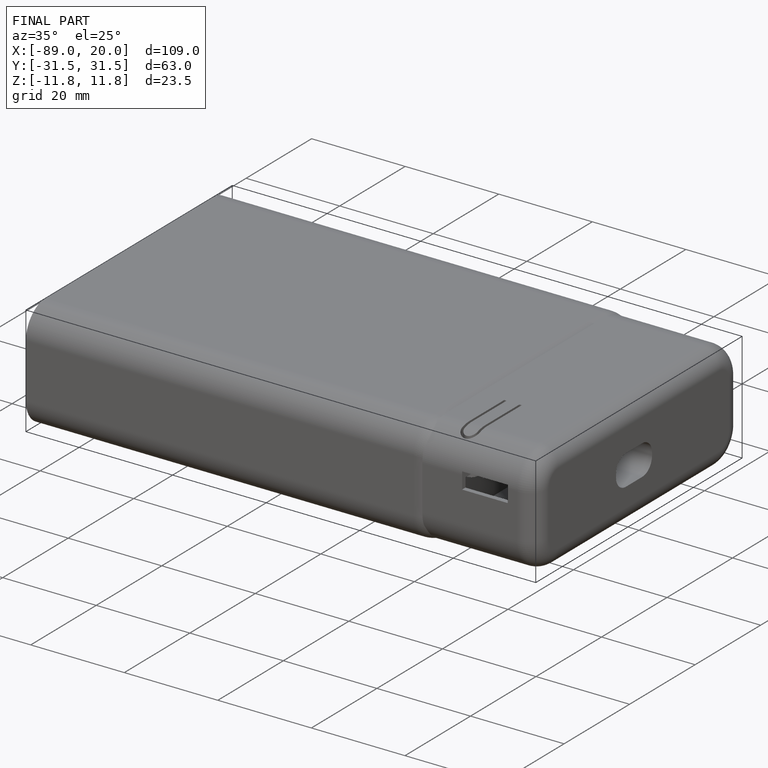
[diagram: finished part — iso view with bounding-box wireframe]
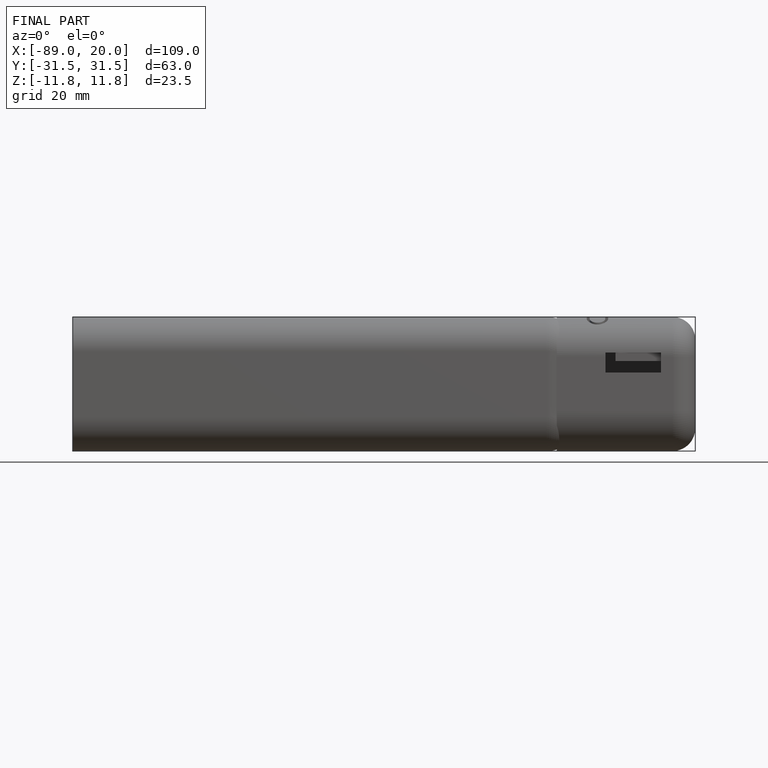
[diagram: finished part — front view with bounding-box wireframe]
